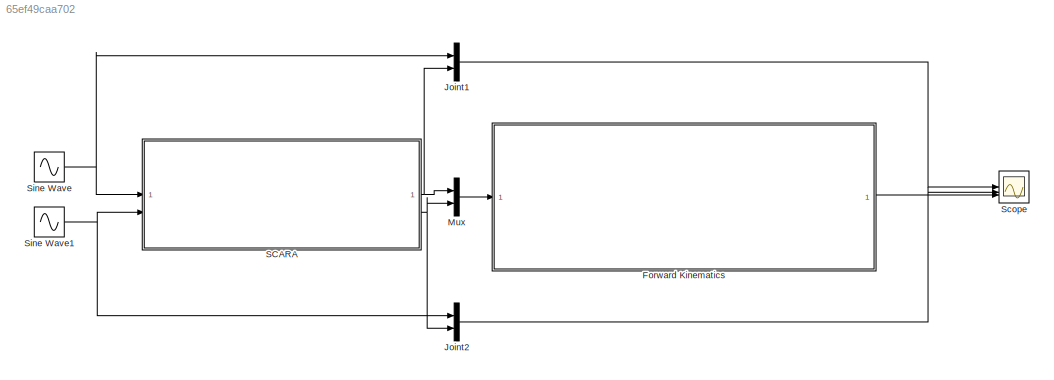
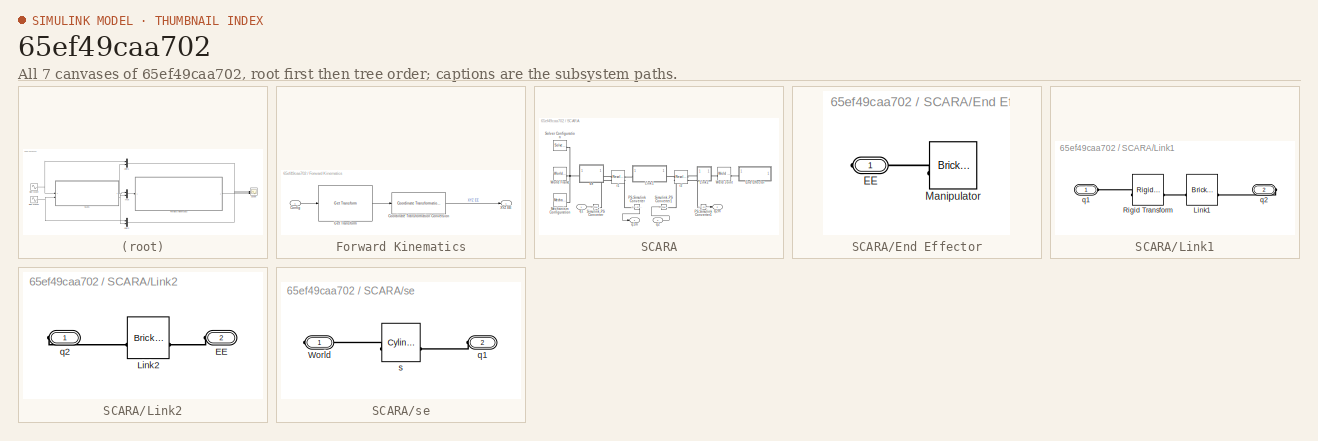
[diagram: thumbnail index - all 7 canvases of the model, root first then tree order]
MODEL slx_65ef49caa702
KIND model
CONFIG AbsTol = auto
CONFIG EnableMultiTasking = off
CONFIG FixedStep = auto
CONFIG MaxStep = 0.2
CONFIG MinStep = auto
CONFIG RelTol = 1e-3
CONFIG SampleTimeConstraint = Unconstrained
CONFIG SolverName = ode45
CONFIG StartTime = 0.0
CONFIG StopTime = 10.0
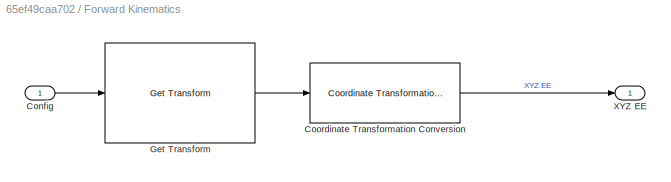
BLOCK [SubSystem] Forward Kinematics
BLOCK [Inport] Forward Kinematics/Config
BLOCK [Reference] Forward Kinematics/Coordinate Transformation Conversion  REF=robotcorelib/Coordinate Transformation Conversion
  LibrarySourceBlock = robotutilslib/Coordinate Transformation Conversion
  SourceBlock = robotcorelib/Coordinate Transformation Conversion
  SourceType = robotics.slcore.internal.block.CoordinateTransformationConversion
BLOCK [Reference] Forward Kinematics/Get Transform  REF=robotmaniplib/Get Transform
  SourceBlock = robotmaniplib/Get Transform
  SourceType = Get Transform
BLOCK [Outport] Forward Kinematics/XYZ EE
BLOCK [Mux] Joint1
  DisplayOption = bar
  Inputs = 2
BLOCK [Mux] Joint2
  DisplayOption = bar
  Inputs = 2
BLOCK [Mux] Mux
  DisplayOption = bar
  Inputs = 2
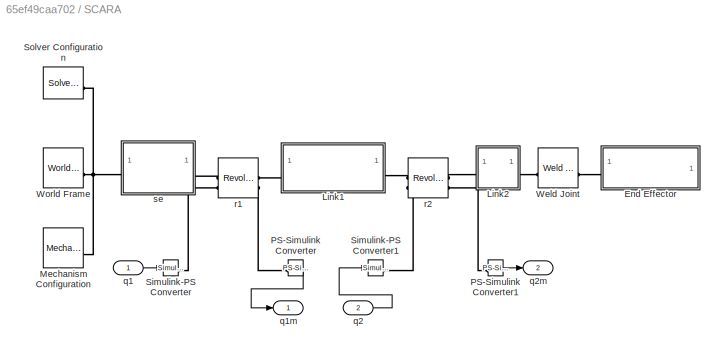
BLOCK [SubSystem] SCARA
BLOCK [SubSystem] SCARA/End Effector
BLOCK [PMIOPort] SCARA/End Effector/EE
  Side = Right
BLOCK [Reference] SCARA/End Effector/Manipulator  REF=sm_lib/Body Elements/Brick Solid
  SourceBlock = sm_lib/Body Elements/Brick Solid
  SourceType = Brick Solid
BLOCK [SubSystem] SCARA/Link1
BLOCK [Reference] SCARA/Link1/Link1  REF=sm_lib/Body Elements/Brick Solid
  SourceBlock = sm_lib/Body Elements/Brick Solid
  SourceType = Brick Solid
BLOCK [Reference] SCARA/Link1/Rigid Transform  REF=sm_lib/Frames and
Transforms/Rigid
Transform
  SourceBlock = sm_lib/Frames and\nTransforms/Rigid\nTransform
  SourceType = Rigid\nTransform
BLOCK [PMIOPort] SCARA/Link1/q1
  Side = Left
BLOCK [PMIOPort] SCARA/Link1/q2
  Port = 2
  Side = Right
BLOCK [SubSystem] SCARA/Link2
BLOCK [PMIOPort] SCARA/Link2/EE
  Port = 2
  Side = Left
BLOCK [Reference] SCARA/Link2/Link2  REF=sm_lib/Body Elements/Brick Solid
  NameLocation = top
  SourceBlock = sm_lib/Body Elements/Brick Solid
  SourceType = Brick Solid
BLOCK [PMIOPort] SCARA/Link2/q2
  Side = Right
BLOCK [Reference] SCARA/Mechanism Configuration  REF=sm_lib/Utilities/Mechanism
Configuration
  SourceBlock = sm_lib/Utilities/Mechanism\nConfiguration
  SourceType = Mechanism\nConfiguration
BLOCK [Reference] SCARA/PS-Simulink Converter  REF=nesl_utility/PS-Simulink
Converter
  SourceBlock = nesl_utility/PS-Simulink\nConverter
  SourceType = PS-Simulink\nConverter
BLOCK [Reference] SCARA/PS-Simulink Converter1  REF=nesl_utility/PS-Simulink
Converter
  SourceBlock = nesl_utility/PS-Simulink\nConverter
  SourceType = PS-Simulink\nConverter
BLOCK [Reference] SCARA/Simulink-PS Converter  REF=nesl_utility/Simulink-PS
Converter
  SourceBlock = nesl_utility/Simulink-PS\nConverter
  SourceType = Simulink-PS\nConverter
BLOCK [Reference] SCARA/Simulink-PS Converter1  REF=nesl_utility/Simulink-PS
Converter
  SourceBlock = nesl_utility/Simulink-PS\nConverter
  SourceType = Simulink-PS\nConverter
BLOCK [Reference] SCARA/Solver Configuration  REF=nesl_utility/Solver
Configuration
  SourceBlock = nesl_utility/Solver\nConfiguration
  SourceType = Solver\nConfiguration
BLOCK [Reference] SCARA/Weld Joint  REF=sm_lib/Joints/Weld Joint
  SourceBlock = sm_lib/Joints/Weld Joint
  SourceType = Weld Joint
BLOCK [Reference] SCARA/World Frame  REF=sm_lib/Frames and
Transforms/World Frame
  SourceBlock = sm_lib/Frames and\nTransforms/World Frame
  SourceType = World Frame
BLOCK [Inport] SCARA/q1
BLOCK [Outport] SCARA/q1m
BLOCK [Inport] SCARA/q2
  Port = 2
BLOCK [Outport] SCARA/q2m
  Port = 2
BLOCK [Reference] SCARA/r1  REF=sm_lib/Joints/Revolute Joint
  SourceBlock = sm_lib/Joints/Revolute Joint
  SourceType = Revolute Joint
BLOCK [Reference] SCARA/r2  REF=sm_lib/Joints/Revolute Joint
  SourceBlock = sm_lib/Joints/Revolute Joint
  SourceType = Revolute Joint
BLOCK [SubSystem] SCARA/se
BLOCK [PMIOPort] SCARA/se/World
  Side = Right
BLOCK [PMIOPort] SCARA/se/q1
  Port = 2
  Side = Left
BLOCK [Reference] SCARA/se/s  REF=sm_lib/Body Elements/Cylindrical Solid
  NameLocation = top
  SourceBlock = sm_lib/Body Elements/Cylindrical Solid
  SourceType = Cylindrical Solid
BLOCK [Scope] Scope
  ActiveDisplayString = 2
  ActiveDisplayYMaximum = 1.2491328116768927
  ActiveDisplayYMinimum = -1.2464592746769836
  Floating = off
  GraphicalSettings = {"Style":{"BackgroundColor":[0.12941176470588237,0.12941176470588237,0.12941176470588237],"AxesColor":[0.07058823529411765,0.07058823529411765,0.07058823529411765],"LabelsColor":[0.8509803921568627,0.8509803921568627,0.8509803921568627],"PreserveColors":false,"Visible":[true,true,true,true,true,true,true],"LineStyle":["-","-","-","-","-","-","-"],"LineWidth":[1.5,1.5,1.5,1.5,2,1.5,1.5],"BarWidth":...<+3450ch>
  LayoutDimensionsString = [3,1]
  MultipleDisplayCache = [{"MaxYLimMag":1.2490408795261734,"MaxYLimReal":1.2490408795261734,"MinYLimMag":0,"MinYLimReal":-1.2456318853205086,"PlotAsMagnitudePhase":false,"ShowGrid":true,"ShowLegend":false,"Title":"Joint 1","YLabel":""},{"MaxYLimMag":1.2491328116768927,"MaxYLimReal":1.2491328116768927,"MinYLimMag":0,"MinYLimReal":-1.2464592746769836,"PlotAsMagnitudePhase":false,"ShowGrid":true,"ShowLegend":false,"Title":"J...<+242ch>
  NumInputPorts = 3
  ScopeFrameLocation = window
  Title = Joint 2
  WasSavedAsWebScope = on
  WindowPosition = [1.000000,49.000000,1920.000000,1009.000000,]
BLOCK [Sin] Sine Wave
  Amplitude = 0
  SampleTime = 0
BLOCK [Sin] Sine Wave1
  Amplitude = 0
  Frequency = 2
  SampleTime = 0
LINE Forward Kinematics/Config:1 -> Forward Kinematics/Get Transform:1
LINE Forward Kinematics/Coordinate Transformation Conversion:1 -> Forward Kinematics/XYZ EE:1
LINE Forward Kinematics/Get Transform:1 -> Forward Kinematics/Coordinate Transformation Conversion:1
LINE Forward Kinematics:1 -> Scope:3
LINE Joint1:1 -> Scope:1
LINE Joint2:1 -> Scope:2
LINE Mux:1 -> Forward Kinematics:1
LINE SCARA/PS-Simulink Converter1:1 -> SCARA/q2m:1
LINE SCARA/PS-Simulink Converter:1 -> SCARA/q1m:1
LINE SCARA/q1:1 -> SCARA/Simulink-PS Converter:1
LINE SCARA/q2:1 -> SCARA/Simulink-PS Converter1:1
NET SCARA:1 -> Joint1:2, Mux:1
NET SCARA:2 -> Joint2:2, Mux:2
NET Sine Wave1:1 -> Joint2:1, SCARA:2
NET Sine Wave:1 -> Joint1:1, SCARA:1
PLINE SCARA/End Effector/EE:RConn1 -- SCARA/End Effector/Manipulator:LConn1
PLINE SCARA/End Effector:RConn1 -- SCARA/Weld Joint:RConn1
PLINE SCARA/Link1/Link1:LConn1 -- SCARA/Link1/q2:RConn1
PLINE SCARA/Link1/Link1:RConn1 -- SCARA/Link1/Rigid Transform:RConn1
PLINE SCARA/Link1/Rigid Transform:LConn1 -- SCARA/Link1/q1:RConn1
PLINE SCARA/Link1:LConn1 -- SCARA/r1:RConn1
PLINE SCARA/Link1:RConn1 -- SCARA/r2:LConn1
PLINE SCARA/Link2/EE:RConn1 -- SCARA/Link2/Link2:LConn1
PLINE SCARA/Link2/Link2:RConn1 -- SCARA/Link2/q2:RConn1
PLINE SCARA/Link2:LConn1 -- SCARA/Weld Joint:LConn1
PLINE SCARA/Link2:RConn1 -- SCARA/r2:RConn1
PNET net1: SCARA/Mechanism Configuration:RConn1 -- SCARA/Solver Configuration:RConn1 -- SCARA/World Frame:RConn1 -- SCARA/se:RConn1
PLINE SCARA/PS-Simulink Converter1:LConn1 -- SCARA/r2:RConn2
PLINE SCARA/PS-Simulink Converter:LConn1 -- SCARA/r1:RConn2
PLINE SCARA/Simulink-PS Converter1:RConn1 -- SCARA/r2:LConn2
PLINE SCARA/Simulink-PS Converter:RConn1 -- SCARA/r1:LConn2
PLINE SCARA/r1:LConn1 -- SCARA/se:LConn1
PLINE SCARA/se/World:RConn1 -- SCARA/se/s:RConn1
PLINE SCARA/se/q1:RConn1 -- SCARA/se/s:LConn1
note: NET lines group one-source signal fan-out (src -> all destinations, sorted); 1:1 wires keep LINE; PNET lines group multi-terminal physical nets as a canonical sorted terminal list (undirected conserving connections); 2-terminal nets keep the pairwise PLINE form
